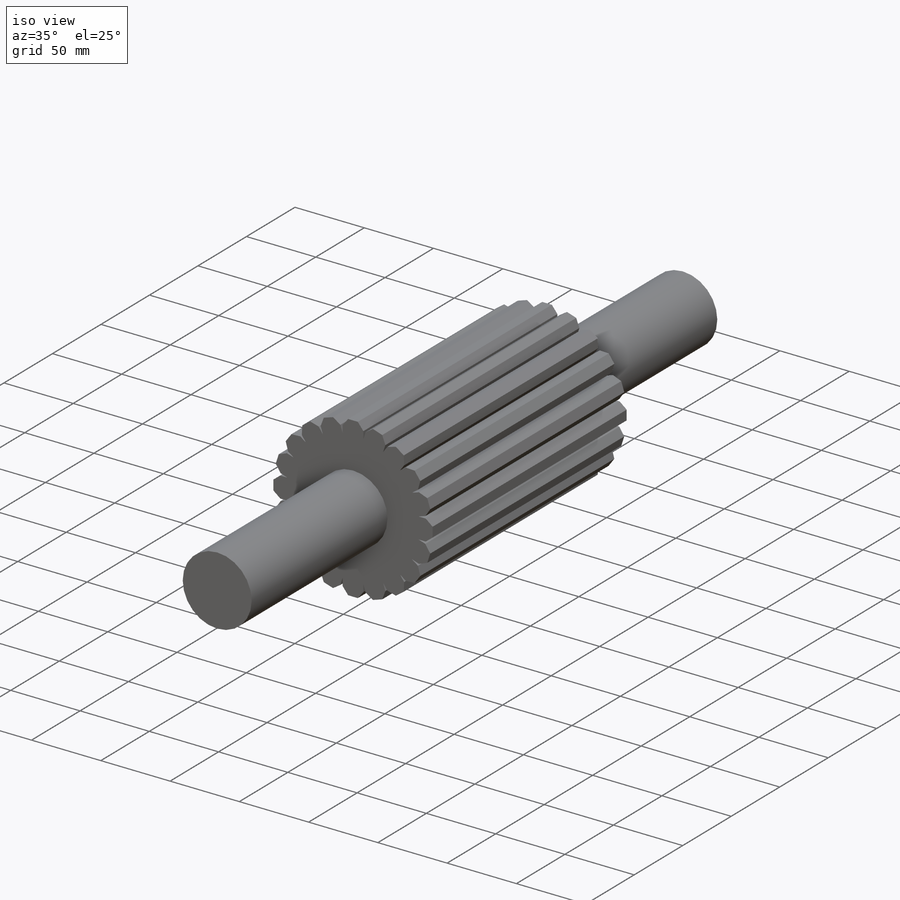
[diagram: iso view]
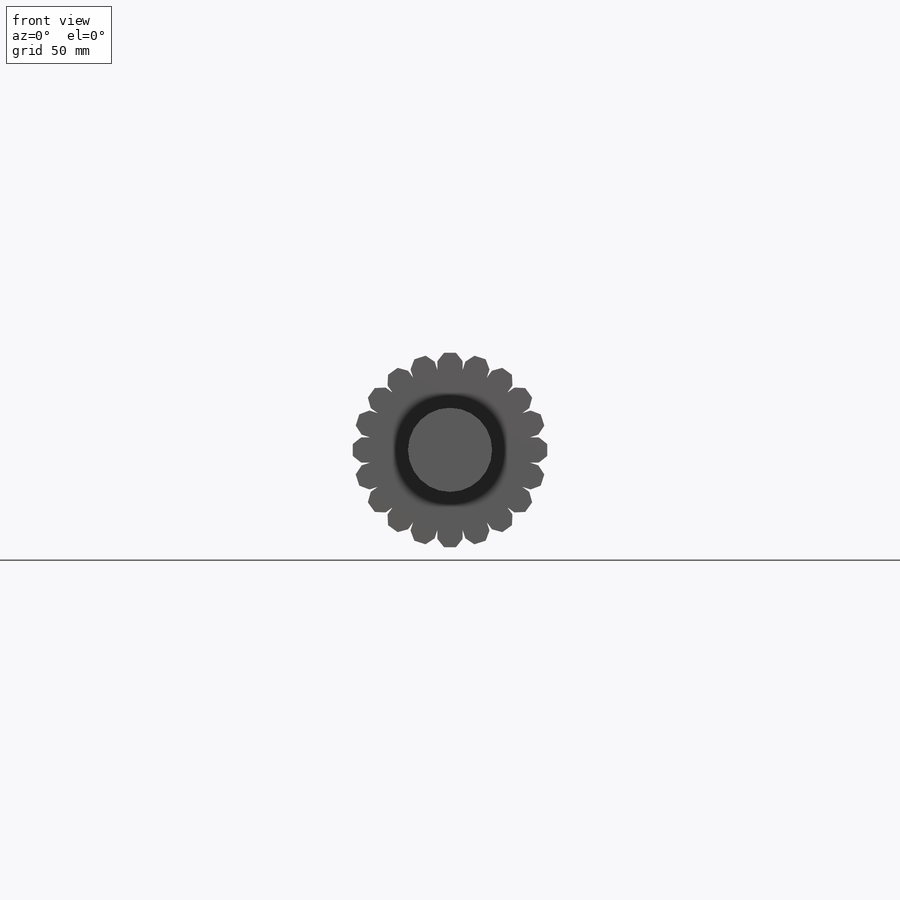
[diagram: front view]
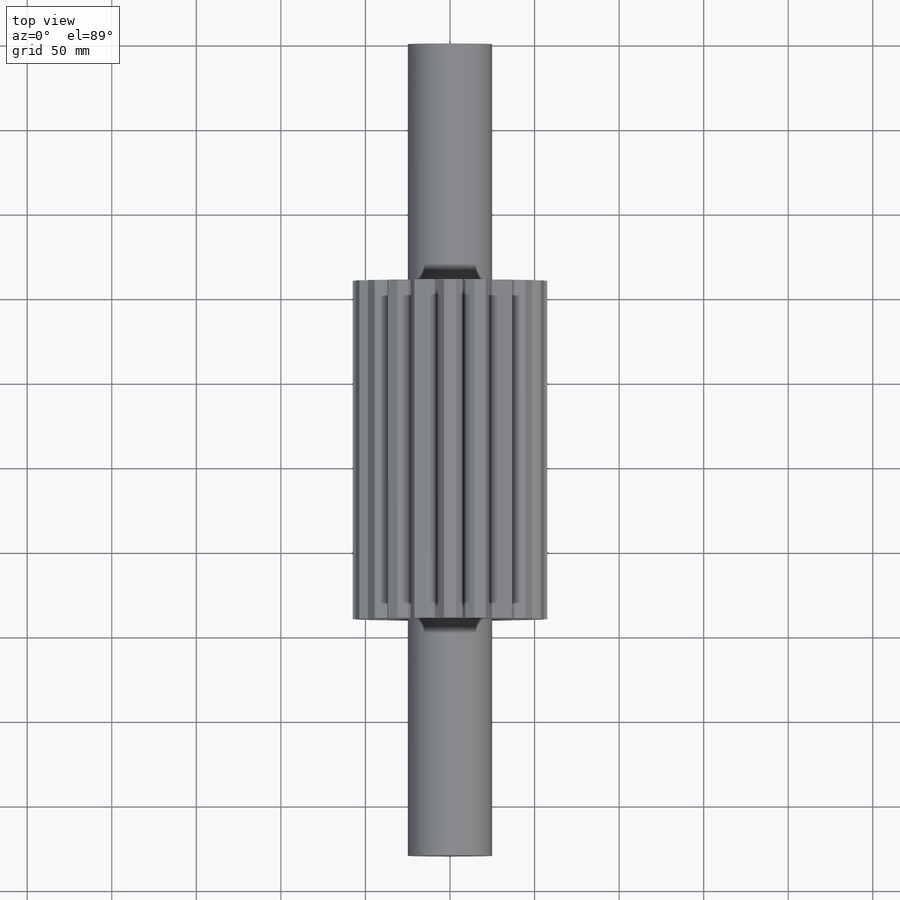
[diagram: top view]
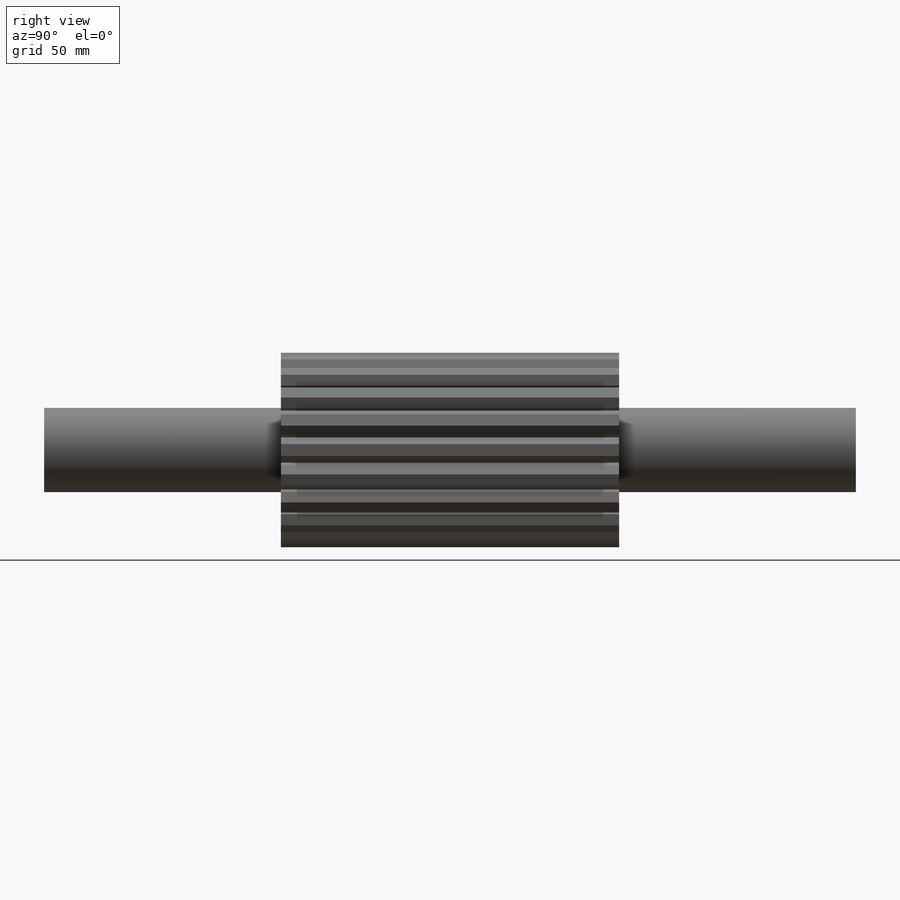
[diagram: right view]
SOLIDWORKS PART (.sldprt)
format: sldprt  version: not decoded by parser v0  size: 271,872 bytes
history: native  units: mm
features: sketch x3, extrude x3, material x1, plane x1, pattern_circular x1 (+13 scaffold rows collapsed)
feature tree (22):
  scaffold x13  (default folders/planes/origin — collapsed)
  material  "Material <not specified>"
  sketch  "Sketch1"  dims[D1=49.75mm]
  extrude  "Boss-Extrude1"  Depth=480mm
  plane  "Plane1"  Offset=240mm
  sketch  "Sketch4"  dims[D1=95.0mm]
  extrude  "Boss-Extrude2"  Depth=200mm
  sketch  "Sketch5"  dims[c1.D1=10.0mm c1.D2=15.0mm c1.D3=4.0mm c1.D4=4.0mm c1.D5=5.0mm c1.D6=5.0mm c2.D1=3.5mm c2.D2=7.5mm c2.D4=3.5mm c2.D5=7.5mm c3.D1=3.5mm c3.D2=3.5mm c3.D4=37.5mm c3.D5=52.5mm c3.D6=~54.919355mm c3.D7=57.5mm c4.D4=37.5mm c4.D5=~54.919355mm]
  extrude  "Boss-Extrude3"  Depth=200mm
  pattern_circular  "CirPattern1"  Count=20 Angle=360deg
decode coverage: 7 of 7 modeling features carry decoded parameters
note: ~ marks probable driven/reference dimensions
note: suppression state not decoded; provenance and decode notes live in map.json
